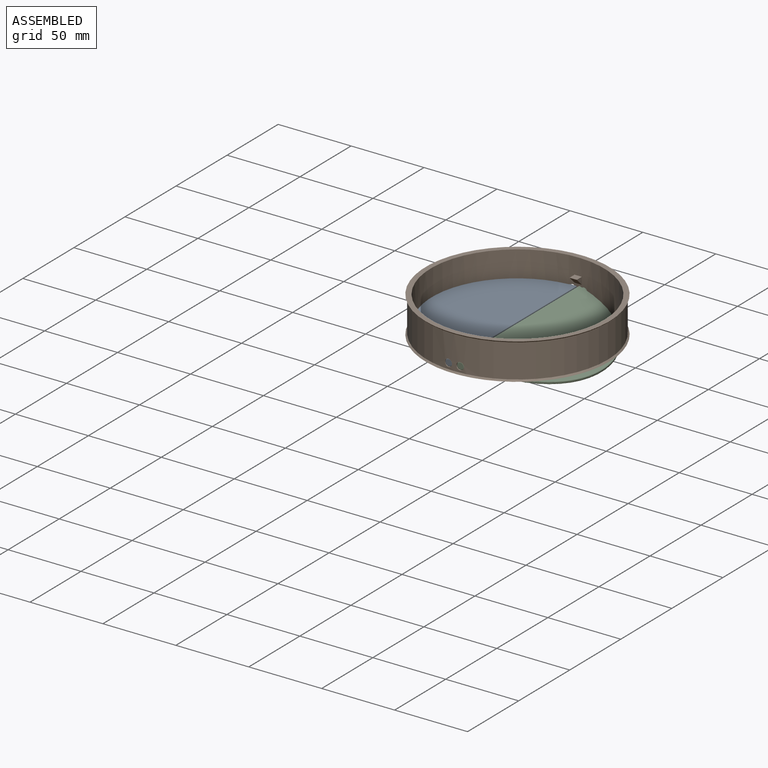
[diagram: assembled view]
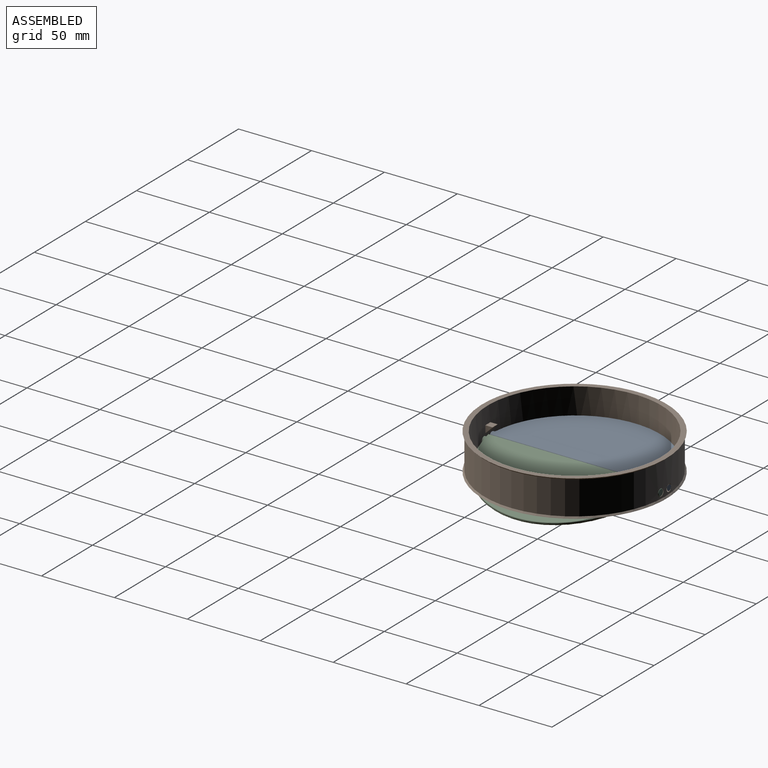
[diagram: assembled view, second angle]
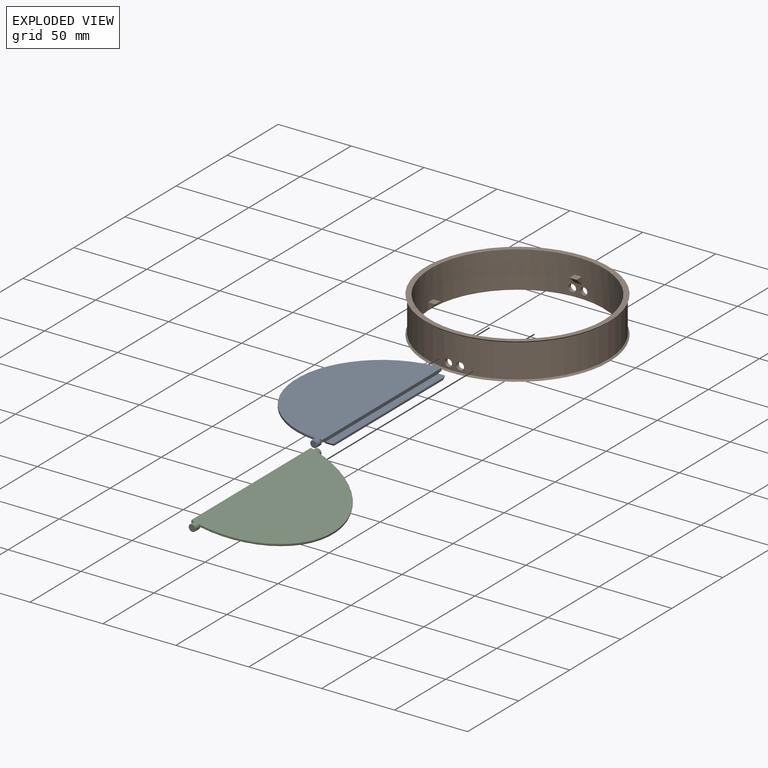
[diagram: exploded view]
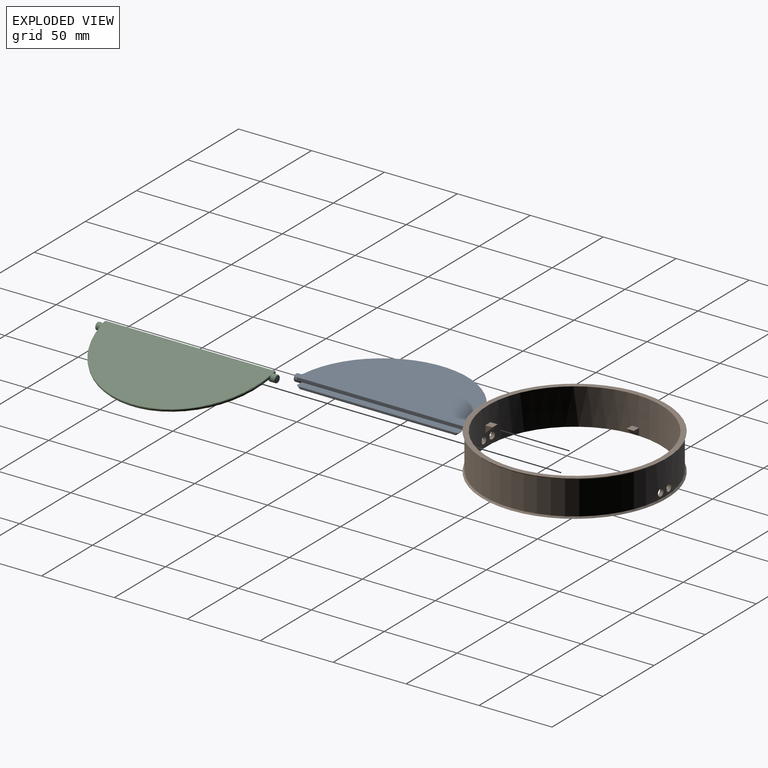
[diagram: exploded view, second angle]
ASSEMBLY  parts=3 mates=2
PART A: 58 faces, bbox 68.6x126.3x6 mm
  f0: cylinder r=5mm len=8.37mm, axis (-1,0,0), area 23.4mm2, adj f1,f2,f3,f4,f5,f6,f7,f8
  f1: plane 116.99x2.09mm, normal (1,0,0), area 241.8mm2, adj f0,f2,f11,f12,f13,f14,f15,f16
  f2: plane 1.05x0.66mm, normal (0,0,1), area 0.7mm2, adj f0,f1,f3,f16
  f3: cylinder r=2.5mm len=4.95mm, axis (0,-1,0), area 6.8mm2, adj f0,f2,f4,f16,f18,f19,f20,f21
  f4: bspline ~3.41x2.54mm, area 1.6mm2, adj f0,f3,f5,f23,f24
  f5: bspline ~1x1mm, area 0.5mm2, adj f0,f4,f6,f24
  f6: bspline ~2.23x1.87mm, area 1mm2, adj f0,f5,f7,f24,f25
  f7: cylinder r=56.5mm len=2.52mm, axis (0,0,-1), area 3.4mm2, adj f0,f6,f8,f25,f26
  f8: cylinder r=5mm len=113.47mm, axis (0,-1,0), area 578.5mm2, adj f0,f7,f9,f15,f21,f26,f27,f28
  f9: plane 107x5.5mm, normal (0,0,1), area 588.5mm2, adj f0,f8,f15,f31
  f10: torus R=5.5mm, axis (-1,0,0), area 1.6mm2, adj f0,f31,f32,f33
  f11: plane 110.95x4.5mm, normal (0,0,-1), area 499.3mm2, adj f0,f1,f15,f32
  f12: cylinder r=58.5mm len=1.83mm, axis (0,0,1), area 1.7mm2, adj f1,f13,f17,f18,f34
  f13: torus R=58mm, axis (0,0,1), area 0.5mm2, adj f1,f12,f14,f35
  f14: plane 1.05x0.23mm, normal (0,0,1), area 0.2mm2, adj f1,f13,f15,f35,f36
  f15: cylinder r=5mm len=8.37mm, axis (-1,0,0), area 23.3mm2, adj f1,f8,f9,f11,f14,f29,f36,f37
  f16: plane 3.5x2mm, normal (0,-1,0), area 3.3mm2, adj f1,f2,f3,f17,f18
  f17: cylinder r=0.5mm len=116.99mm, axis (0,-1,0), area 91.9mm2, adj f1,f12,f16,f18
  f18: plane 117.7x57.8mm, normal (0,0,-1), area 5230.6mm2, adj f3,f12,f16,f17,f39,f40,f41,f42
  f19: bspline ~3.49x2.32mm, area 1.4mm2, adj f3,f20,f42,f44
  f20: bspline ~1.21x1.12mm, area 0.4mm2, adj f3,f19,f21,f45
  f21: plane 115.67x52.88mm, normal (0,0,1), area 4665.9mm2, adj f3,f8,f20,f22,f27,f30,f36,f45
  f22: bspline ~0.87x0.38mm, area 0.2mm2, adj f3,f21,f23,f30
  f23: bspline ~2.72x2.72mm, area 1.6mm2, adj f3,f4,f22,f48
  f24: bspline ~2.5x2.48mm, area 3.1mm2, adj f4,f5,f6,f48
  f25: bspline ~2.12x2.12mm, area 0.9mm2, adj f6,f7,f26,f48
  f26: bspline ~0.87x0.5mm, area 0.2mm2, adj f7,f8,f25,f30
  f27: bspline ~1.17x1.01mm, area 0.6mm2, adj f8,f21,f28,f47,f49
  f28: bspline ~3.23x2.23mm, area 1.2mm2, adj f8,f27,f29,f49,f50
  f29: cylinder r=56.5mm len=2.72mm, axis (0,0,-1), area 3.8mm2, adj f8,f15,f28,f37,f50
  f30: bspline ~1.17x1.01mm, area 0.6mm2, adj f8,f21,f22,f26,f48
  f31: cylinder r=0.5mm len=107mm, axis (0,-1,0), area 83.8mm2, adj f9,f10,f33,f38
  f32: cylinder r=0.5mm len=110.95mm, axis (0,1,0), area 86mm2, adj f10,f11,f33,f38
  f33: plane 107.92x0.91mm, normal (1,0,0), area 97.5mm2, adj f10,f31,f32,f38
  f34: bspline ~2.08x1.84mm, area 1.2mm2, adj f12,f35,f36,f41
  f35: bspline ~1.24x1.08mm, area 0.6mm2, adj f13,f14,f34,f36
  f36: cylinder r=2.5mm len=5mm, axis (0,1,0), area 50.8mm2, adj f14,f15,f21,f34,f35,f37,f41,f46
  f37: bspline ~1x1mm, area 0.6mm2, adj f15,f29,f36,f50
  f38: torus R=5.5mm, axis (-1,0,0), area 1.6mm2, adj f15,f31,f32,f33
  f39: bspline ~1.51x0.77mm, area 0.5mm2, adj f18,f40,f43,f53
  f40: bspline ~1.52x0.45mm, area 0.2mm2, adj f18,f39,f52
  f41: bspline ~1.83x0.6mm, area 0.4mm2, adj f18,f34,f36
  f42: bspline ~2.48x1.18mm, area 0.6mm2, adj f18,f19,f43
  f43: torus R=58mm, axis (0,0,1), area 135mm2, adj f18,f39,f42,f44
  f44: cylinder r=58.5mm len=116.45mm, axis (0,0,1), area 171.8mm2, adj f19,f43,f45,f53
  f45: torus R=58mm, axis (0,0,1), area 134mm2, adj f20,f21,f44,f46
  f46: bspline ~1.21x1.12mm, area 0.4mm2, adj f21,f36,f45,f53
  f47: bspline ~4.05x3.3mm, area 2mm2, adj f21,f27,f36,f49,f50
  f48: bspline ~2.57x2.51mm, area 3.2mm2, adj f23,f24,f25,f30
  f49: bspline ~2.57x2.51mm, area 3.2mm2, adj f27,f28,f47,f50
  f50: bspline ~2.5x2.48mm, area 4.2mm2, adj f28,f29,f36,f37,f47,f49
  f51: torus R=2mm, axis (0,-1,0), area 11.4mm2, adj f36,f54
  f52: bspline ~1.7x0.53mm, area 0.2mm2, adj f36,f40,f53
  f53: bspline ~2.09x1.82mm, area 1mm2, adj f36,f39,f44,f46,f52
  f54: plane 4x4mm, normal (0,1,0), area 12.6mm2, adj f51
  f55: torus R=2mm, axis (0,-1,0), area 11.4mm2, adj f56
  f56: plane 4x4mm, normal (0,-1,0), area 12.6mm2, adj f55
  f57: cylinder r=2.5mm len=5mm, axis (0,-1,0), area 0mm2
PART B: 26 faces, bbox 126x126x25 mm
  f0: cylinder r=62mm len=124mm, axis (0,0,-1), area 8881.1mm2, adj f10,f11,f12,f13,f24,f25
  f1: plane 5.1x5mm, normal (0,0,1), area 25.4mm2, adj f2,f3,f4,f21
  f2: plane 5.05x5mm, normal (0,1,0), area 12.7mm2, adj f1,f4,f9,f21
  f3: plane 5.05x5mm, normal (0,-1,0), area 12.7mm2, adj f1,f4,f9,f21
  f4: cylinder r=59.5mm len=119mm, axis (0,0,-1), area 9167.6mm2, adj f1,f2,f3,f5,f6,f7,f8,f9
  f5: plane 5x5mm, normal (0,0,1), area 24.9mm2, adj f4,f6,f7,f23
  f6: plane 4.95x4.95mm, normal (-1,0,0), area 12.2mm2, adj f4,f5,f23
  f7: plane 4.95x4.95mm, normal (1,0,0), area 12.2mm2, adj f4,f5,f23
  f8: plane 126x126mm, normal (0,0,1), area 1347mm2, adj f4,f24
  f9: plane 126x126mm, normal (0,0,-1), area 1347.8mm2, adj f2,f3,f4,f18,f19,f20,f21,f25
  f10: cylinder r=2.5mm len=5mm, axis (0,-1,0), area 39.4mm2, adj f0,f4
  f11: cylinder r=2.5mm len=5mm, axis (0,-1,0), area 39.4mm2, adj f0,f4
  f12: cylinder r=2.5mm len=5mm, axis (0,-1,0), area 39.4mm2, adj f0,f4
  f13: cylinder r=2.5mm len=5mm, axis (0,-1,0), area 39.4mm2, adj f0,f4
  f14: plane 5x5mm, normal (0,0,1), area 24.9mm2, adj f4,f15,f16,f22
  f15: plane 4.95x4.95mm, normal (-1,0,0), area 12.2mm2, adj f4,f14,f22
  f16: plane 4.95x4.95mm, normal (1,0,0), area 12.2mm2, adj f4,f14,f22
  f17: plane 5.1x5mm, normal (0,0,1), area 25.4mm2, adj f4,f18,f19,f20
  f18: plane 5.05x5mm, normal (0,1,0), area 12.7mm2, adj f4,f9,f17,f20
  f19: plane 5.05x5mm, normal (0,-1,0), area 12.7mm2, adj f4,f9,f17,f20
  f20: plane 5x5mm, normal (-0.71,0,-0.71), area 35.4mm2, adj f9,f17,f18,f19
  f21: plane 5x5mm, normal (0.71,0,-0.71), area 35.4mm2, adj f1,f2,f3,f9
  f22: plane 5x5mm, normal (0,0.71,-0.71), area 35.2mm2, adj f4,f14,f15,f16
  f23: plane 5x5mm, normal (0,-0.71,-0.71), area 35.2mm2, adj f4,f5,f6,f7
  f24: cone r=63mm half-angle=45deg, axis (0,0,1), area 555.4mm2, adj f0,f8
  f25: cone r=61mm half-angle=45deg, axis (0,0,-1), area 555.4mm2, adj f0,f9
PART C: 40 faces, bbox 63.4x126.2x5.5 mm
  f0: cylinder r=58.5mm len=116.57mm, axis (0,0,-1), area 173mm2, adj f10,f11,f35,f39
  f1: cylinder r=58.5mm len=1.5mm, axis (0,0,-1), area 1.1mm2, adj f11,f20,f25,f26
  f2: cylinder r=58.5mm len=1.5mm, axis (0,0,-1), area 1.1mm2, adj f10,f23,f29,f32
  f3: plane 116x1mm, normal (1,0,0), area 116mm2, adj f24,f25,f29,f30
  f4: plane 116.07x57.57mm, normal (0,0,1), area 5213.6mm2, adj f6,f8,f10,f11,f12,f15,f16,f19
  f5: plane 116.79x57.5mm, normal (0,0,-1), area 5227.3mm2, adj f22,f26,f30,f32,f33,f34,f35,f36
  f6: cylinder r=56.5mm len=2.94mm, axis (0,0,-1), area 4.9mm2, adj f4,f12,f13,f14,f15
  f7: plane 4x4mm, normal (0,1,0), area 12.6mm2, adj f37
  f8: cylinder r=56.5mm len=2.94mm, axis (0,0,-1), area 4.9mm2, adj f4,f16,f17,f18,f19
  f9: plane 4x4mm, normal (0,-1,0), area 12.6mm2, adj f38
  f10: cylinder r=2.5mm len=5mm, axis (0,-1,0), area 54.2mm2, adj f0,f2,f4,f16,f17,f18,f19,f23
  f11: cylinder r=2.5mm len=5mm, axis (0,1,0), area 54.2mm2, adj f0,f1,f4,f12,f13,f14,f15,f20
  f12: bspline ~1.05x1.01mm, area 0.7mm2, adj f4,f6,f11,f13
  f13: bspline ~2.5x2.48mm, area 4.4mm2, adj f6,f11,f12,f14
  f14: bspline ~2.57x2.51mm, area 4.6mm2, adj f6,f11,f13,f15
  f15: bspline ~1.18x1.01mm, area 0.8mm2, adj f4,f6,f11,f14
  f16: bspline ~1.06x1.01mm, area 0.7mm2, adj f4,f8,f10,f17
  f17: bspline ~2.5x2.48mm, area 4.4mm2, adj f8,f10,f16,f18
  f18: bspline ~2.57x2.51mm, area 4.6mm2, adj f8,f10,f17,f19
  f19: bspline ~1.17x1.01mm, area 0.8mm2, adj f4,f8,f10,f18
  f20: torus R=58mm, axis (0,0,1), area 0.5mm2, adj f1,f4,f11,f21
  f21: sphere r=0.5mm, area 0.3mm2, adj f20,f24,f25
  f22: bspline ~1.67x0.58mm, area 0.4mm2, adj f5,f11,f26
  f23: torus R=58mm, axis (0,0,1), area 0.5mm2, adj f2,f4,f10,f27
  f24: cylinder r=0.5mm len=116mm, axis (0,-1,0), area 91.1mm2, adj f3,f4,f21,f27
  f25: cylinder r=0.5mm len=1mm, axis (0,0,-1), area 0.8mm2, adj f1,f3,f21,f28
  f26: torus R=58mm, axis (0,0,1), area 1.2mm2, adj f1,f5,f22,f28
  f27: sphere r=0.5mm, area 0.3mm2, adj f23,f24,f29
  f28: sphere r=0.5mm, area 0.3mm2, adj f25,f26,f30
  f29: cylinder r=0.5mm len=1mm, axis (0,0,-1), area 0.8mm2, adj f2,f3,f27,f31
  f30: cylinder r=0.5mm len=116mm, axis (0,1,0), area 91.1mm2, adj f3,f5,f28,f31
  f31: sphere r=0.5mm, area 0.5mm2, adj f29,f30,f32
  f32: torus R=58mm, axis (0,0,1), area 1.2mm2, adj f2,f5,f31,f33
  f33: bspline ~1.66x0.58mm, area 0.4mm2, adj f5,f10,f32
  f34: bspline ~1.61x0.61mm, area 0.4mm2, adj f5,f10,f35
  f35: torus R=58mm, axis (0,0,1), area 136.1mm2, adj f0,f5,f34,f36
  f36: bspline ~1.6x0.61mm, area 0.4mm2, adj f5,f11,f35
  f37: torus R=2mm, axis (0,-1,0), area 11.4mm2, adj f7,f11
  f38: torus R=2mm, axis (0,-1,0), area 11.4mm2, adj f9,f10
  f39: torus R=58mm, axis (0,0,1), area 134.6mm2, adj f0,f4,f10,f11
PLACE A rot(axis=(1,0,0),180deg) t=(-16.74,-20.7,35.17)mm
PLACE B t=(-16.24,-20.89,29.67)mm fixed
PLACE C rot(axis=(0,-1,0),165.4deg) t=(-15.25,-20.7,37)mm
MATE revolute B.f12 <-> A.f36  axis (0,-1,0) through (-20.24,-81.45,34.67)mm
MATE revolute C.f37 <-> B.f10  axis (0,-1,0) through (-12.24,-81.95,34.67)mm
